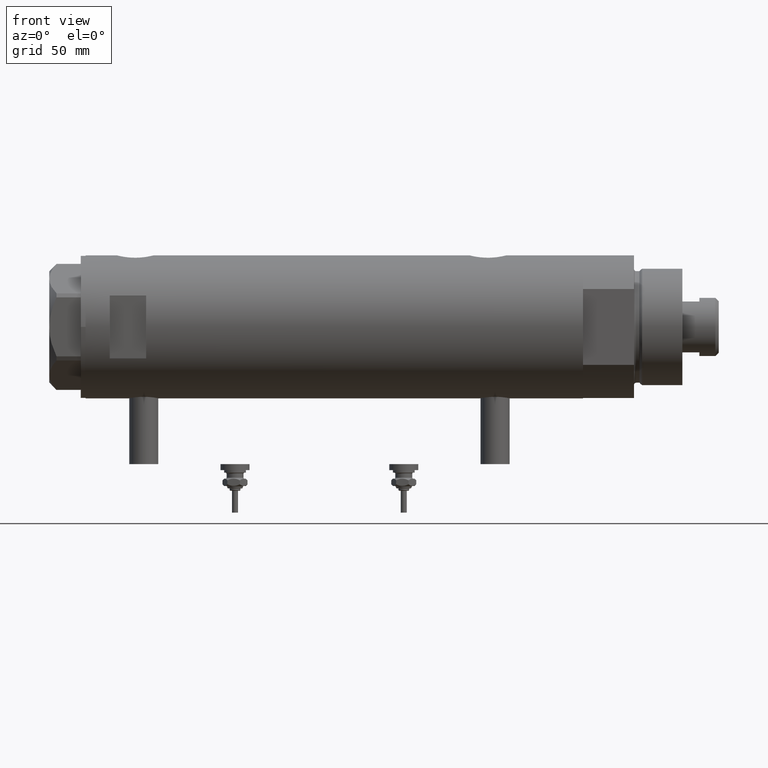
[diagram: clean part render]
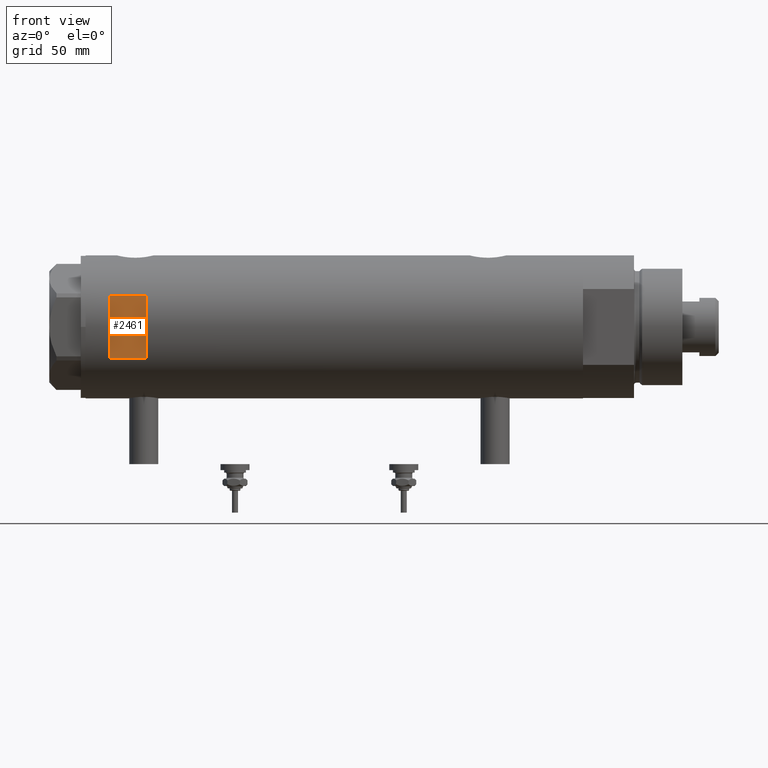
[diagram: same view with one face highlighted and labeled with its STEP entity id]
A machine part, front view. The second image highlights one B-rep face of the part: STEP entity #2461.
In plain terms, the highlighted planar face has unit normal (-0, 1, 0).
Its self-contained STEP definition (entity closure, byte-faithful):
#9 = CARTESIAN_POINT ( 'NONE',  ( -12.96148139681573319, -26.49999999999999645, -102.5999999999999943 ) ) ;
#73 = DIRECTION ( 'NONE',  ( 0.000000000000000000, -0.000000000000000000, 1.000000000000000000 ) ) ;
#374 = EDGE_CURVE ( 'NONE', #5068, #1773, #4092, .T. ) ;
#442 = DIRECTION ( 'NONE',  ( 0.000000000000000000, 0.000000000000000000, 1.000000000000000000 ) ) ;
#492 = DIRECTION ( 'NONE',  ( 0.000000000000000000, 1.000000000000000000, 0.000000000000000000 ) ) ;
#611 = AXIS2_PLACEMENT_3D ( 'NONE', #4548, #492, #73 ) ;
#875 = LINE ( 'NONE', #2691, #5213 ) ;
#966 = CARTESIAN_POINT ( 'NONE',  ( 12.96148139681573319, -26.49999999999998934, 77.59999999999996589 ) ) ;
#1047 = LINE ( 'NONE', #4673, #1603 ) ;
#1153 = EDGE_LOOP ( 'NONE', ( #5771, #1828, #2055, #1630 ) ) ;
#1603 = VECTOR ( 'NONE', #3311, 1000.000000000000000 ) ;
#1630 = ORIENTED_EDGE ( 'NONE', *, *, #3261, .F. ) ;
#1636 = VERTEX_POINT ( 'NONE', #966 ) ;
#1773 = VERTEX_POINT ( 'NONE', #2593 ) ;
#1828 = ORIENTED_EDGE ( 'NONE', *, *, #4680, .T. ) ;
#1843 = DIRECTION ( 'NONE',  ( -0.000000000000000000, -0.000000000000000000, -1.000000000000000000 ) ) ;
#1970 = VERTEX_POINT ( 'NONE', #3492 ) ;
#2055 = ORIENTED_EDGE ( 'NONE', *, *, #5781, .T. ) ;
#2400 = LINE ( 'NONE', #5758, #4426 ) ;
#2461 = ADVANCED_FACE ( 'NONE', ( #4514 ), #2750, .F. ) ;
#2593 = CARTESIAN_POINT ( 'NONE',  ( -12.96148139681573319, -26.49999999999998934, 77.59999999999996589 ) ) ;
#2691 = CARTESIAN_POINT ( 'NONE',  ( 12.96148139681573319, -26.49999999999999645, -102.5999999999999943 ) ) ;
#2750 = PLANE ( 'NONE',  #611 ) ;
#3261 = EDGE_CURVE ( 'NONE', #5068, #1970, #2400, .T. ) ;
#3311 = DIRECTION ( 'NONE',  ( 1.000000000000000000, -0.000000000000000000, -0.000000000000000000 ) ) ;
#3492 = CARTESIAN_POINT ( 'NONE',  ( 12.96148139681573319, -26.49999999999998934, 92.59999999999999432 ) ) ;
#4092 = LINE ( 'NONE', #9, #4199 ) ;
#4199 = VECTOR ( 'NONE', #1843, 1000.000000000000000 ) ;
#4426 = VECTOR ( 'NONE', #5229, 1000.000000000000000 ) ;
#4514 = FACE_OUTER_BOUND ( 'NONE', #1153, .T. ) ;
#4548 = CARTESIAN_POINT ( 'NONE',  ( -29.50000000000000355, -26.50000000000000355, 92.59999999999999432 ) ) ;
#4634 = CARTESIAN_POINT ( 'NONE',  ( -12.96148139681573319, -26.49999999999998934, 92.59999999999999432 ) ) ;
#4673 = CARTESIAN_POINT ( 'NONE',  ( -29.50000000000000355, -26.50000000000000355, 77.59999999999999432 ) ) ;
#4680 = EDGE_CURVE ( 'NONE', #1773, #1636, #1047, .T. ) ;
#5068 = VERTEX_POINT ( 'NONE', #4634 ) ;
#5213 = VECTOR ( 'NONE', #442, 1000.000000000000000 ) ;
#5229 = DIRECTION ( 'NONE',  ( 1.000000000000000000, -0.000000000000000000, -0.000000000000000000 ) ) ;
#5758 = CARTESIAN_POINT ( 'NONE',  ( -29.50000000000000355, -26.50000000000000355, 92.59999999999999432 ) ) ;
#5771 = ORIENTED_EDGE ( 'NONE', *, *, #374, .T. ) ;
#5781 = EDGE_CURVE ( 'NONE', #1636, #1970, #875, .T. ) ;